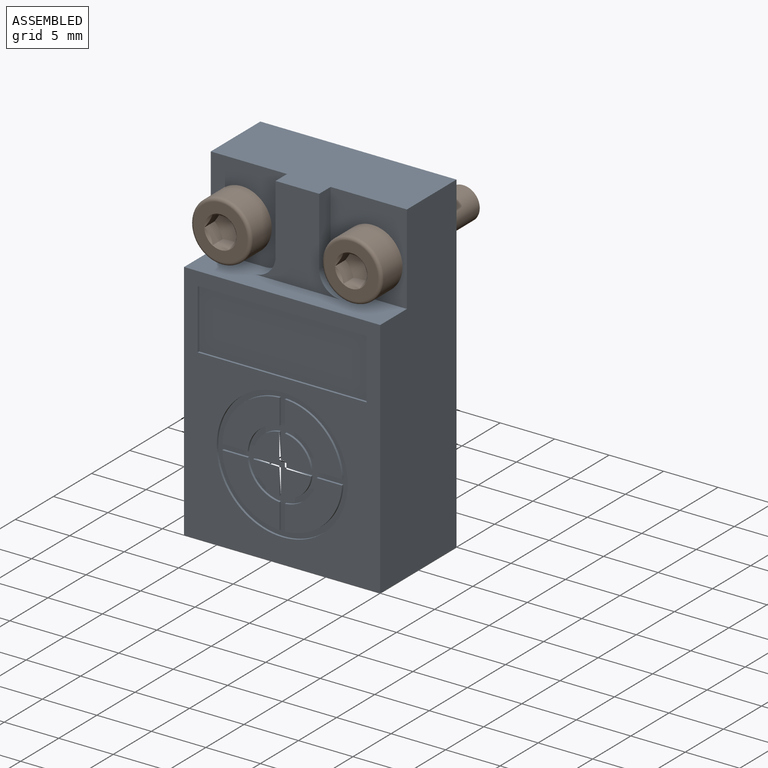
[diagram: assembled view]
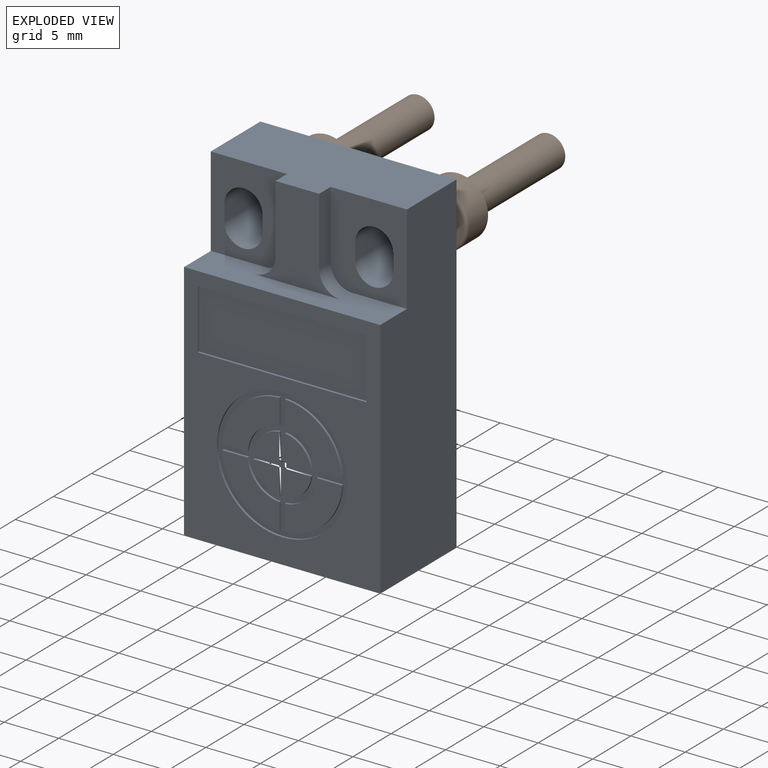
[diagram: exploded view]
GUIDED TOUR — FREECAD ASSEMBLY "LimitSensor"

This assembly has 2 components, labeled P0..P1 below (a component is one placed body or linked part; the same part can appear more than once), held together by 0 modeled joints plus 1 derived contact edge. A joint is a constraint between two components; its type names the relative motion it leaves free:
  CONTACT — a derived adjacency edge — the two components touch in the source model (clearance under 2% of the assembly's diagonal); it is measured from the geometry, not a modeled constraint.
Axis/direction vectors are unit vectors and 'through' points are millimeter coordinates, both in the assembly's world frame.

MATES
  1. CONTACT "contact_0_1": P0 <-> P1, contact direction (0.000, 1.000, 0.000) through (-6.05, -6.50, 7.98) mm (derived from contact, not a modeled constraint)

ASSEMBLY ORDER
  1. P1 — the base component [order verified]
  2. P0 [order verified]
Order-tag legend:
  [order verified] — this step's position reverses a verified removal order: the component was checked to insert without passing through the ones already placed.

Of the 2 components, 1 carries a construction recipe — the FreeCAD feature program (sketches with constraints, then the solid features that consume them) that regenerates the part from scratch, quoted from this document or from the linked companion document it references; the rest are supplied as boundary geometry only. The tour below walks the components in assembly order: each is shown spotlighted twice — in the assembled view, then in the exploded view, where a leader line traces a displaced component back to its assembled socket (components that stay in place when exploded have no leader line; saturated green if recipe-attached, orange if geometry-only; every other component desaturated gray) — followed by its recipe or geometry summary and the mates that hold it.
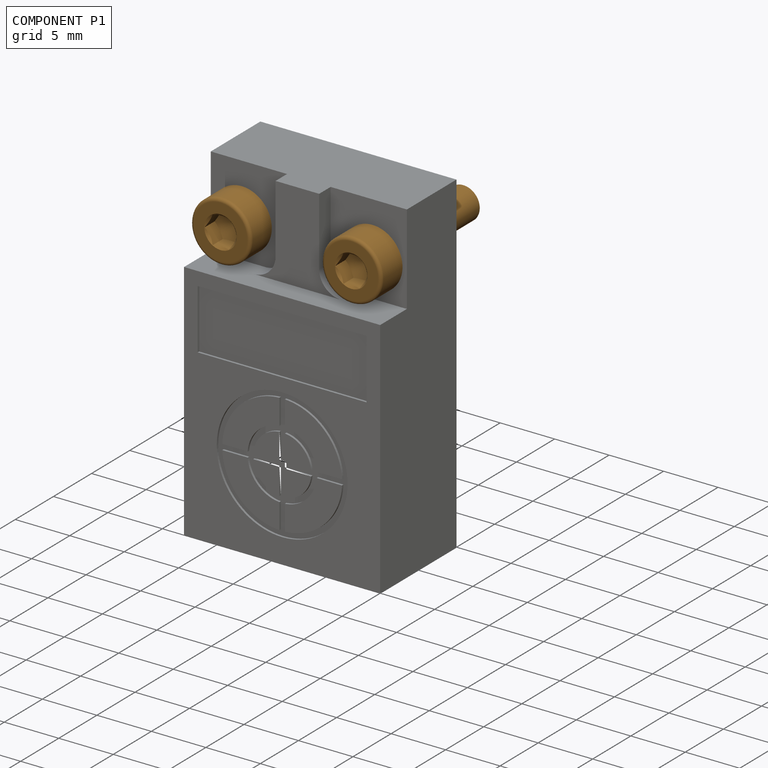
[diagram: component P1 — assembled]
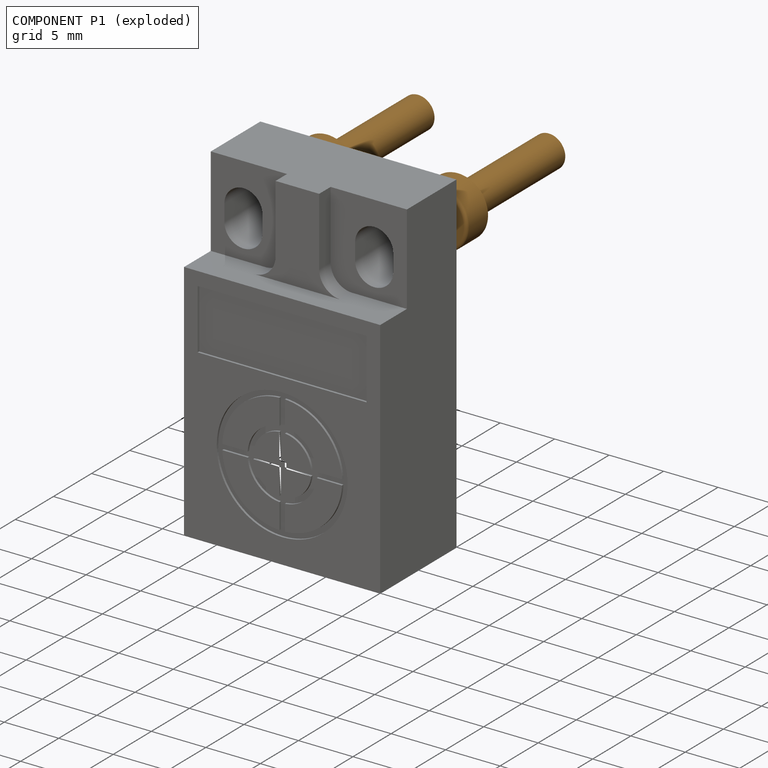
[diagram: component P1 — exploded]
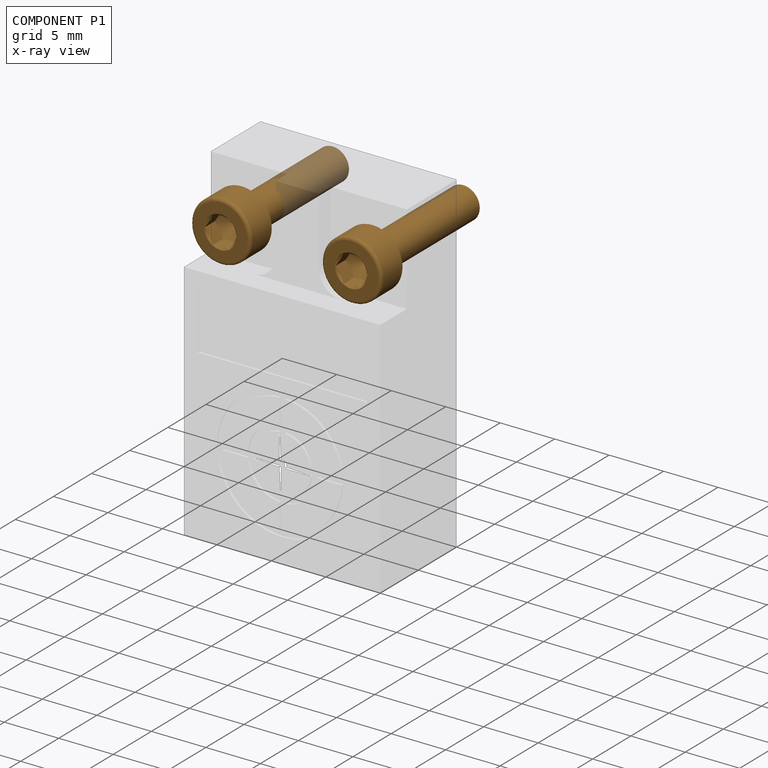
[diagram: component P1 — x-ray view]
COMPONENT P1 — geometry summary ("M3x12-Screw 2pc"; no construction recipe available for this part):
  bounding box: 17.5 x 15.0 x 5.5 mm
  tessellated surface: 31,620 triangles
  volume: 291 mm^3 (20% of its bounding box)
  symmetry: mirror-symmetric across its x mid-plane
Held by: resting contact with P0 (derived edge).
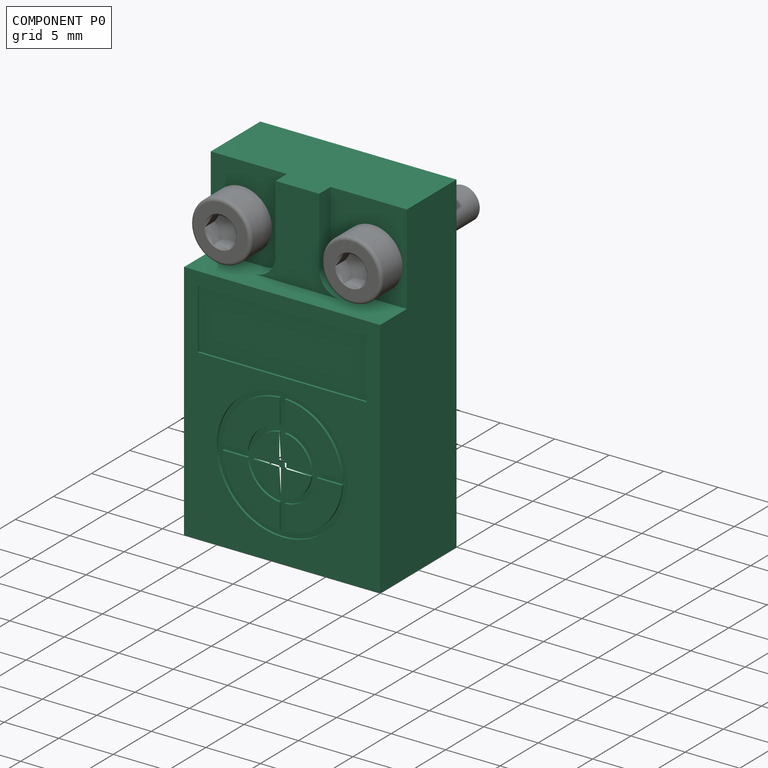
[diagram: component P0 — assembled]
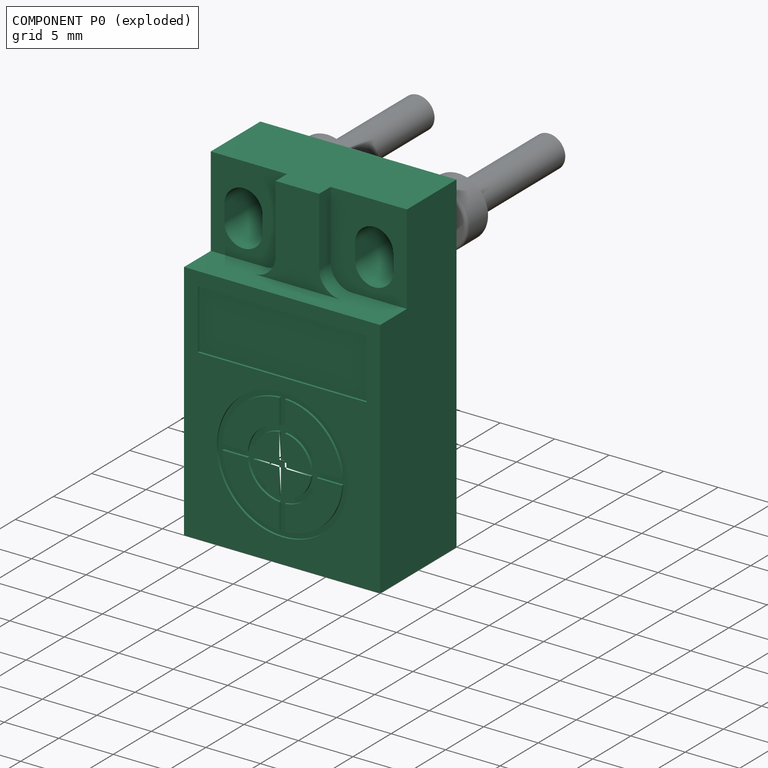
[diagram: component P0 — exploded]
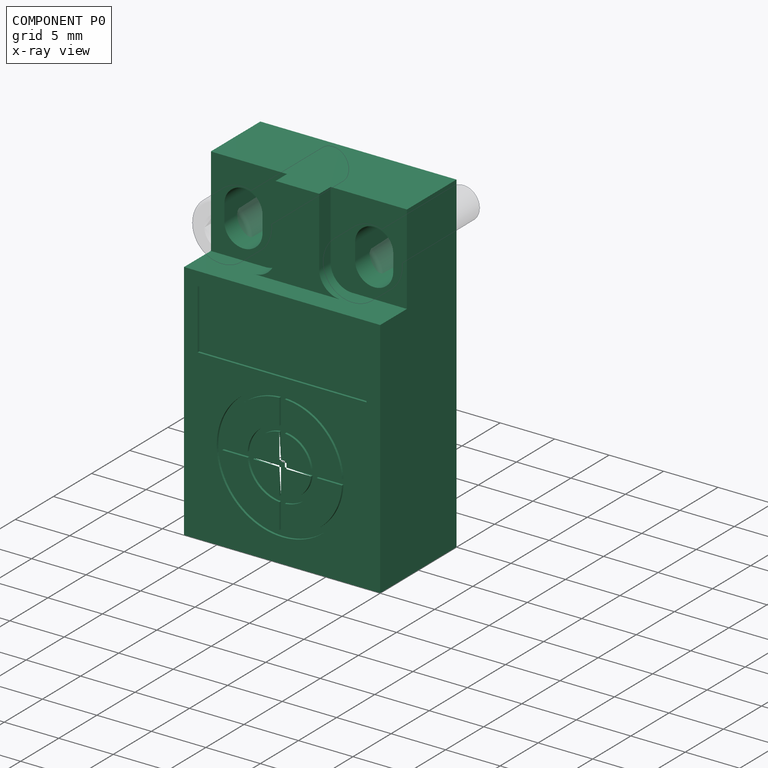
[diagram: component P0 — x-ray view]
COMPONENT P0 — recipe-attached ("Link(Limit sensor)", modeled in this document).
Held by: resting contact with P1 (derived edge).
Construction recipe (the document's own serialized feature program — sketch geometry with constraints, then the solid features built on it; lengths are millimeters unless a unit is written):

FEATURE [Sketcher::SketchObject] Sketch
  FullyConstrained = true
  MapMode = 5
  Placement = pos=(0,0,0) rot=(1,0,0;1.5708rad)
  Support = -> [XZ_Plane]
  sketch-geometry (4):
    g0: LineSegment StartX=-9 StartY=15.25 StartZ=0 EndX=9 EndY=15.25 EndZ=0
    g1: LineSegment StartX=9 StartY=15.25 StartZ=0 EndX=9 EndY=-15.25 EndZ=0
    g2: LineSegment StartX=9 StartY=-15.25 StartZ=0 EndX=-9 EndY=-15.25 EndZ=0
    g3: LineSegment StartX=-9 StartY=-15.25 StartZ=0 EndX=-9 EndY=15.25 EndZ=0
  constraints (11):
    c: Coincident(g0,g1)
    c: Coincident(g1,g2)
    c: Coincident(g2,g3)
    c: Coincident(g3,g0)
    c: Horizontal(g0)
    c: Horizontal(g2)
    c: Vertical(g1)
    c: Vertical(g3)
    c: Symmetric(g1,g0,g-1)
    c: DistanceX(g0,g0) = 18
    c: DistanceY(g1,g1) = 30.5
FEATURE [PartDesign::Pad] Pad
  ClaimChildren = false
  Direction = (1,1,1)
  Fit = 0
  FitJoin = 0
  InnerFit = 0
  InnerFitJoin = 0
  InnerTaperAngle = 0
  InnerTaperAngleRev = 0
  Length = 10
  Length2 = 100
  Linearize = true
  NewSolid = false
  Placement = pos=(0,0,0) rot=(1,0,0;1.5708rad)
  Profile = -> Sketch
  Refine = true
  Suppress = false
  Type = 0
  _ProfileBasedVersion = 1
FEATURE [Sketcher::SketchObject] Sketch001
  FullyConstrained = true
  MapMode = 5
  Placement = pos=(0,-10,2.2e-15) rot=(1,0,0;1.5708rad)
  Support = -> [Pad]
  sketch-geometry (4):
    g0: LineSegment StartX=-9 StartY=15.25 StartZ=0 EndX=9 EndY=15.25 EndZ=0
    g1: LineSegment StartX=9 StartY=15.25 StartZ=0 EndX=9 EndY=7 EndZ=0
    g2: LineSegment StartX=9 StartY=7 StartZ=0 EndX=-9 EndY=7 EndZ=0
    g3: LineSegment StartX=-9 StartY=7 StartZ=0 EndX=-9 EndY=15.25 EndZ=0
  constraints (11):
    c: Coincident(g0,g1)
    c: Coincident(g1,g2)
    c: Coincident(g2,g3)
    c: Coincident(g3,g0)
    c: Horizontal(g0)
    c: Vertical(g1)
    c: Vertical(g3)
    c: Symmetric(g1,g2,g-2)
    c: DistanceX(g0,g0) = 18
    c: DistanceY(g1,g1) = 8.25
    c: DistanceY(g-1,g1) = 7
FEATURE [PartDesign::Pocket] Pocket
  BaseFeature = -> Pad
  ClaimChildren = false
  Fit = 0
  FitJoin = 0
  InnerFit = 0
  InnerFitJoin = 0
  InnerTaperAngle = 0
  InnerTaperAngleRev = 0
  Length = 2
  Length2 = 100
  Linearize = true
  NewSolid = false
  Placement = pos=(0,0,0) rot=(1,0,0;1.5708rad)
  Profile = -> Sketch001
  Refine = true
  Suppress = false
  Type = 0
  _ProfileBasedVersion = 1
FEATURE [Sketcher::SketchObject] Sketch002
  FullyConstrained = true
  MapMode = 5
  Placement = pos=(0,-8,6.9e-15) rot=(1,0,0;1.5708rad)
  Support = -> [Pocket]
  sketch-geometry (4):
    g0: ArcOfCircle CenterX=-6 CenterY=11.25 CenterZ=0 NormalX=0 NormalY=0 NormalZ=1 AngleXU=0 Radius=1.75 StartAngle=0 EndAngle=3.14159
    g1: ArcOfCircle CenterX=-6 CenterY=9.75 CenterZ=0 NormalX=0 NormalY=0 NormalZ=1 AngleXU=0 Radius=1.75 StartAngle=3.14159 EndAngle=6.28319
    g2: LineSegment StartX=-7.75 StartY=11.25 StartZ=0 EndX=-7.75 EndY=9.75 EndZ=0
    g3: LineSegment StartX=-4.25 StartY=11.25 StartZ=0 EndX=-4.25 EndY=9.75 EndZ=0
  constraints (10):
    c: Tangent(g0,g3) = 1.5708
    c: Tangent(g0,g2) = -1.5708
    c: Tangent(g2,g1) = -1.5708
    c: Tangent(g3,g1) = 1.5708
    c: Vertical(g2)
    c: Equal(g0,g1)
    c: DistanceY(g3,g3) = 1.5
    c: Diameter(g0) = 3.5
    c: DistanceY(g-1,g0) = 11.25
    c: DistanceX(g0,g-1) = 6
FEATURE [PartDesign::Pocket] Pocket001
  BaseFeature = -> Pocket
  ClaimChildren = false
  Fit = 0
  FitJoin = 0
  InnerFit = 0
  InnerFitJoin = 0
  InnerTaperAngle = 0
  InnerTaperAngleRev = 0
  Length = 5
  Length2 = 100
  Linearize = true
  NewSolid = false
  Placement = pos=(0,0,0) rot=(1,0,0;1.5708rad)
  Profile = -> Sketch002
  Refine = true
  Suppress = false
  Type = 1
  _ProfileBasedVersion = 1
FEATURE [Sketcher::SketchObject] Sketch003
  ExternalGeometry = -> [Pocket001]
  FullyConstrained = true
  MapMode = 5
  Placement = pos=(0,-8,6.9e-15) rot=(1,0,0;1.5708rad)
  Support = -> [Pocket001]
  sketch-geometry (6):
    g0: LineSegment StartX=-9 StartY=15.25 StartZ=0 EndX=-2 EndY=15.25 EndZ=0
    g1: LineSegment StartX=-2 StartY=15.25 StartZ=0 EndX=-2 EndY=9 EndZ=0
    g2: LineSegment StartX=-4 StartY=7 StartZ=0 EndX=-9 EndY=7 EndZ=0
    g3: LineSegment StartX=-9 StartY=7 StartZ=0 EndX=-9 EndY=15.25 EndZ=0
    g4: ArcOfCircle CenterX=-4 CenterY=9 CenterZ=0 NormalX=0 NormalY=0 NormalZ=1 AngleXU=0 Radius=2 StartAngle=4.71239 EndAngle=6.28319
    g5: GeomPoint [constr] X=-2 Y=7 Z=0
  constraints (16):
    c: Coincident(g0,g1)
    c: Coincident(g2,g3)
    c: Coincident(g3,g0)
    c: Horizontal(g0)
    c: Horizontal(g2)
    c: Vertical(g1)
    c: Vertical(g3)
    c: DistanceX(g2,g-1) = 9
    c: DistanceY(g-1,g0) = 15.25
    c: Horizontal(g-3,g2)
    c: DistanceX(g0,g0) = 7
    c: PointOnObject(g5,g1)
    c: PointOnObject(g5,g2)
    c: Tangent(g1,g4) = 1.5708
    c: Tangent(g2,g4) = 1.5708
    c: Radius(g4) = 2
FEATURE [PartDesign::Pocket] Pocket002
  BaseFeature = -> Pocket001
  ClaimChildren = false
  Fit = 0
  FitJoin = 0
  InnerFit = 0
  InnerFitJoin = 0
  InnerTaperAngle = 0
  InnerTaperAngleRev = 0
  Length = 1.5
  Length2 = 100
  Linearize = true
  NewSolid = false
  Placement = pos=(0,0,0) rot=(1,0,0;1.5708rad)
  Profile = -> Sketch003
  Refine = true
  Suppress = false
  Type = 0
  _ProfileBasedVersion = 1
FEATURE [PartDesign::Mirrored] Mirrored
  BaseFeature = -> Pocket002
  CopyShape = false
  MirrorPlane = -> Sketch003 [V_Axis]
  NewSolid = false
  OriginalSubs = -> [Pocket002,Pocket001]
  Originals = -> [Pocket002,Pocket001]
  ParallelTransform = true
  Placement = pos=(0,0,0) rot=(1,0,0;1.5708rad)
  Refine = true
  SubTransform = true
  Suppress = false
  _Version = 2
FEATURE [Sketcher::SketchObject] Sketch004
  FullyConstrained = false
  MapMode = 5
  Placement = pos=(0,-10,2.2e-15) rot=(1,0,0;1.5708rad)
  Support = -> [Mirrored]
  sketch-geometry (30):
    g0: LineSegment StartX=-7.75 StartY=5.75 StartZ=0 EndX=7.75 EndY=5.75 EndZ=0
    g1: LineSegment StartX=7.75 StartY=5.75 StartZ=0 EndX=7.75 EndY=0.25 EndZ=0
    g2: LineSegment StartX=7.75 StartY=0.25 StartZ=0 EndX=-7.75 EndY=0.25 EndZ=0
    g3: LineSegment StartX=-7.75 StartY=0.25 StartZ=0 EndX=-7.75 EndY=5.75 EndZ=0
    g4: Circle CenterX=0 CenterY=-7 CenterZ=0 NormalX=0 NormalY=0 NormalZ=1 AngleXU=0 Radius=6
    g5: ArcOfCircle CenterX=0 CenterY=-7 CenterZ=0 NormalX=0 NormalY=0 NormalZ=1 AngleXU=0 Radius=5.5 StartAngle=3.18706 EndAngle=4.66692
    g6: ArcOfCircle CenterX=0 CenterY=-7 CenterZ=0 NormalX=0 NormalY=0 NormalZ=1 AngleXU=0 Radius=3.175 StartAngle=3.22041 EndAngle=4.63357
    g7: ArcOfCircle CenterX=0 CenterY=-7 CenterZ=0 NormalX=0 NormalY=0 NormalZ=1 AngleXU=0 Radius=2.675 StartAngle=3.23519 EndAngle=4.61879
    g8: LineSegment StartX=-5.49432 StartY=-6.75 StartZ=0 EndX=-3.16514 EndY=-6.75 EndZ=0
    g9: LineSegment StartX=-5.49432 StartY=-7.25 StartZ=0 EndX=-3.16514 EndY=-7.25 EndZ=0
    g10: LineSegment StartX=0.25 StartY=-1.50568 StartZ=0 EndX=0.25 EndY=-3.83486 EndZ=0
    g11: LineSegment StartX=-0.25 StartY=-1.50568 StartZ=0 EndX=-0.25 EndY=-3.83486 EndZ=0
    g12: LineSegment [constr] StartX=-7.32001 StartY=-7 StartZ=0 EndX=7.24789 EndY=-7 EndZ=0
    g13: ArcOfCircle CenterX=0 CenterY=-7 CenterZ=0 NormalX=0 NormalY=0 NormalZ=1 AngleXU=0 Radius=2.675 StartAngle=0.0935945 EndAngle=1.4772
    g14: ArcOfCircle CenterX=0 CenterY=-7 CenterZ=0 NormalX=0 NormalY=0 NormalZ=1 AngleXU=0 Radius=3.175 StartAngle=0.0788218 EndAngle=1.49197
    g15: ArcOfCircle CenterX=0 CenterY=-7 CenterZ=0 NormalX=0 NormalY=0 NormalZ=1 AngleXU=0 Radius=5.5 StartAngle=0.0454702 EndAngle=1.52533
    g16: LineSegment StartX=3.16514 StartY=-7.25 StartZ=0 EndX=5.49432 EndY=-7.25 EndZ=0
    g17: LineSegment StartX=3.16514 StartY=-6.75 StartZ=0 EndX=5.49432 EndY=-6.75 EndZ=0
    g18: LineSegment StartX=-2.66329 StartY=-6.75 StartZ=0 EndX=2.66329 EndY=-6.75 EndZ=0
    g19: LineSegment StartX=-2.66329 StartY=-7.25 StartZ=0 EndX=2.66329 EndY=-7.25 EndZ=0
    g20: LineSegment StartX=-0.25 StartY=-4.33671 StartZ=0 EndX=-0.25 EndY=-9.66329 EndZ=0
    g21: LineSegment StartX=0.25 StartY=-4.33671 StartZ=0 EndX=0.25 EndY=-9.66329 EndZ=0
    g22: ArcOfCircle CenterX=0 CenterY=-7 CenterZ=0 NormalX=0 NormalY=0 NormalZ=1 AngleXU=0 Radius=2.675 StartAngle=1.66439 EndAngle=3.048
    g23: ArcOfCircle CenterX=0 CenterY=-7 CenterZ=0 NormalX=0 NormalY=0 NormalZ=1 AngleXU=0 Radius=2.675 StartAngle=4.80598 EndAngle=6.18959
    g24: ArcOfCircle CenterX=0 CenterY=-7 CenterZ=0 NormalX=0 NormalY=0 NormalZ=1 AngleXU=0 Radius=3.175 StartAngle=4.79121 EndAngle=6.20436
    g25: LineSegment StartX=0.25 StartY=-10.1651 StartZ=0 EndX=0.25 EndY=-12.4943 EndZ=0
    g26: LineSegment StartX=-0.25 StartY=-10.1651 StartZ=0 EndX=-0.25 EndY=-12.4943 EndZ=0
    g27: ArcOfCircle CenterX=0 CenterY=-7 CenterZ=0 NormalX=0 NormalY=0 NormalZ=1 AngleXU=0 Radius=5.5 StartAngle=4.75786 EndAngle=6.23772
    g28: ArcOfCircle CenterX=0 CenterY=-7 CenterZ=0 NormalX=0 NormalY=0 NormalZ=1 AngleXU=0 Radius=5.5 StartAngle=1.61627 EndAngle=3.09612
    g29: ArcOfCircle CenterX=0 CenterY=-7 CenterZ=0 NormalX=0 NormalY=0 NormalZ=1 AngleXU=0 Radius=3.175 StartAngle=1.64962 EndAngle=3.06277
  constraints (80):
    c: Coincident(g0,g1)
    c: Coincident(g1,g2)
    c: Coincident(g2,g3)
    c: Coincident(g3,g0)
    c: Horizontal(g2)
    c: Vertical(g1)
    c: Vertical(g3)
    c: Symmetric(g0,g0,g-2)
    c: DistanceX(g0,g0) = 15.5
    c: DistanceY(g1,g1) = 5.5
    c: PointOnObject(g4,g-2)
    c: Coincident(g5,g4)
    c: Coincident(g6,g4)
    c: Coincident(g7,g4)
    c: Diameter(g7) = 5.35
    c: Diameter(g6) = 6.35
    c: Diameter(g5) = 11
    c: Diameter(g4) = 12
    c: Horizontal(g8)
    c: Horizontal(g9)
    c: PointOnObject(g10,g5)
    c: Vertical(g10)
    c: Vertical(g11)
    c: Symmetric(g11,g10,g-2)
    c: DistanceX(g11,g10) = 0.5
    c: Horizontal(g12)
    c: Symmetric(g17,g16,g12)
    c: DistanceY(g16,g17) = 0.5
    c: Coincident(g28,g8)
    c: Coincident(g5,g9)
    c: Equal(g7,g13)
    c: Coincident(g7,g13)
    c: Equal(g6,g14)
    c: Coincident(g6,g14)
    c: Equal(g5,g15)
    c: Coincident(g15,g17)
    c: Coincident(g5,g15)
    c: Coincident(g27,g16)
    c: Coincident(g19,g23)
    c: Coincident(g16,g24)
    c: Tangent(g9,g16)
    c: Coincident(g18,g13)
    c: Coincident(g17,g14)
    c: Tangent(g8,g17)
    c: Coincident(g8,g29)
    c: Coincident(g18,g22)
    c: Tangent(g8,g18)
    c: Coincident(g9,g6)
    c: Coincident(g19,g7)
    c: Tangent(g9,g19)
    c: Tangent(g11,g20)
    c: Tangent(g10,g21)
    c: Equal(g13,g22)
    c: Coincident(g13,g21)
    c: Coincident(g22,g20)
    c: Coincident(g13,g22)
    c: Equal(g7,g23)
    c: Coincident(g7,g23)
    c: Equal(g6,g24)
    c: Coincident(g6,g24)
    c: Coincident(g21,g23)
    c: Coincident(g25,g24)
    c: Tangent(g21,g25)
    c: Coincident(g20,g7)
    c: Coincident(g26,g6)
    c: Tangent(g20,g26)
    c: Equal(g5,g27)
    c: Coincident(g5,g26)
    c: Coincident(g27,g25)
    c: Coincident(g5,g27)
    c: Equal(g15,g28)
    c: PointOnObject(g15,g10)
    c: PointOnObject(g28,g11)
    c: Coincident(g15,g28)
    c: DistanceY(g4,g-1) = 7
    c: DistanceY(g-1,g1) = 0.25
    c: Equal(g14,g29)
    c: Coincident(g14,g10)
    c: Coincident(g29,g11)
    c: Coincident(g14,g29)
FEATURE [PartDesign::Pocket] Pocket003
  BaseFeature = -> Mirrored
  ClaimChildren = false
  Fit = 0
  FitJoin = 0
  InnerFit = 0
  InnerFitJoin = 0
  InnerTaperAngle = 0
  InnerTaperAngleRev = 0
  Length = 0.2
  Length2 = 100
  Linearize = true
  NewSolid = false
  Placement = pos=(0,0,0) rot=(1,0,0;1.5708rad)
  Profile = -> Sketch004
  Refine = true
  Suppress = false
  Type = 0
  _ProfileBasedVersion = 1
FEATURE [Sketcher::SketchObject] Sketch005
  ExternalGeometry = -> [Pocket003]
  FullyConstrained = true
  MapMode = 5
  Placement = pos=(0,0,0) rot=(-1,0,0;1.5708rad)
  Support = -> [Pocket003]
  sketch-geometry (2):
    g0: Circle CenterX=-6 CenterY=-10.5 CenterZ=0 NormalX=0 NormalY=0 NormalZ=1 AngleXU=0 Radius=1.5
    g1: Circle CenterX=6 CenterY=-10.5 CenterZ=0 NormalX=0 NormalY=0 NormalZ=1 AngleXU=0 Radius=1.5
  constraints (4):
    c: Symmetric(g-3,g-4,g0)
    c: Symmetric(g-5,g-6,g1)
    c: Equal(g1,g0)
    c: Diameter(g1) = 3
FEATURE [PartDesign::Body] Body  label="Limit sensor"
  AutoGroupSolids = false
  ExportMode = 0
  Group = -> [Sketch,Pad,Sketch001,Pocket,Sketch002,Pocket001,Sketch003,Pocket002,Mirrored,Sketch004,Pocket003,Sketch005]
  Origin = -> Origin
  Tip = -> Pocket003
  _ExportChildren = -> [Pad,Pocket,Pocket001,Pocket002,Mirrored,Pocket003,Sketch005]
  _GroupVersion = 1
PROVENANCE & LICENSES
Assembly and component geometry: a FreeCAD (.FCStd) document from a public repository crawl; components, placements and joints were extracted with FreeCAD and each solid tessellated.
Construction recipes: the document's own serialized feature recipes (and, for linked parts, the recipes of companion documents from the same project).
License: mit.
Joints: native FreeCAD joints and A2plus constraints are mapped to standard mate types; edges marked 'derived from contact' connect touching components and are measured from the geometry, not modeled.
Verification: 1 of this assembly's 2 components carries a construction recipe (1 from this document itself); the rest are geometry-only. Every component's tessellation passed the extraction mesh gates (mesh-volume checksum against the B-rep where available, bounding-box inflation <= 2%).
Renders: orthographic iso camera (az 35 / el 25); the floor grid conveys scale (grid pitch printed in each image; no ruler). In the exploded view each component is displaced by its stored offset vector: the offsets alone carry the explosion direction (mate normal/axis signs are not orientation cues and do not encode it), and separation distances are assigned per mate-chain, not proportionally to assembly-order depth.
